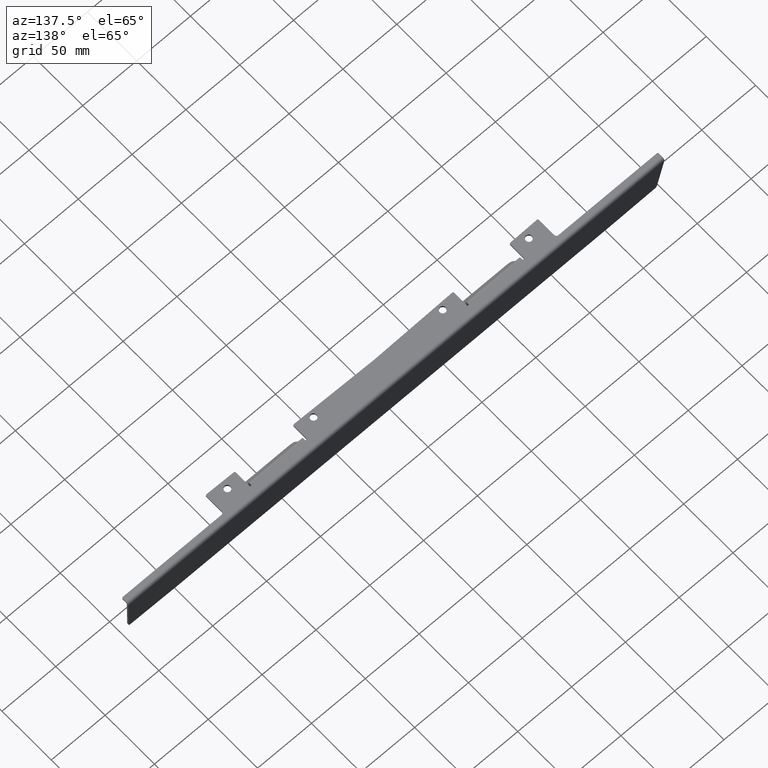
[diagram: clean part render]
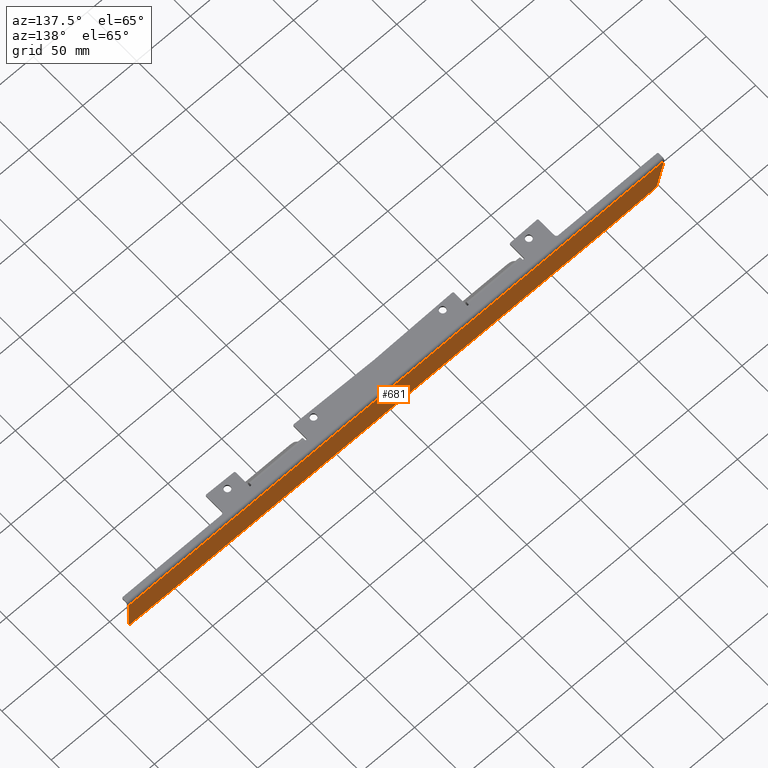
[diagram: same view with one face highlighted and labeled with its STEP entity id]
A machine part, auxiliary view. The second image highlights one B-rep face of the part: STEP entity #681.
In plain terms, the highlighted planar face has unit normal (0, -0.9962, 0.0872).
Its self-contained STEP definition (entity closure, byte-faithful):
#20 = DIRECTION ( 'NONE',  ( 0.0000000000000000000, -0.08715574274765482100, -0.9961946980917458800 ) ) ;
#29 = DIRECTION ( 'NONE',  ( -0.9993908270190956500, -0.003041691556625808000, -0.03476669358110191100 ) ) ;
#54 = VERTEX_POINT ( 'NONE', #2273 ) ;
#82 = ORIENTED_EDGE ( 'NONE', *, *, #2459, .T. ) ;
#123 = VERTEX_POINT ( 'NONE', #2293 ) ;
#163 = DIRECTION ( 'NONE',  ( -0.0000000000000000000, 0.9961946980917457700, -0.08715574274765480700 ) ) ;
#175 = DIRECTION ( 'NONE',  ( -0.0000000000000000000, 0.9961946980917457700, -0.08715574274765480700 ) ) ;
#180 = VECTOR ( 'NONE', #29, 1000.000000000000100 ) ;
#203 = VERTEX_POINT ( 'NONE', #288 ) ;
#216 = CARTESIAN_POINT ( 'NONE',  ( 247.2166936555520400, 16.09134908696670900, -23.02360959325102400 ) ) ;
#222 = EDGE_LOOP ( 'NONE', ( #2385, #1758, #555, #1685, #1750, #428, #1118, #326, #82, #1075 ) ) ;
#226 = DIRECTION ( 'NONE',  ( -0.08715574274765834600, -0.08682408883346180700, -0.9924038765061041800 ) ) ;
#260 = CARTESIAN_POINT ( 'NONE',  ( 1.866100699968819200, 13.31897073957210300, -54.71203910701565600 ) ) ;
#288 = CARTESIAN_POINT ( 'NONE',  ( 198.9650898701433200, 13.91895675186533800, -47.85416760557850300 ) ) ;
#295 = DIRECTION ( 'NONE',  ( -0.0000000000000000000, 0.9961946980917457700, -0.08715574274765480700 ) ) ;
#313 = CARTESIAN_POINT ( 'NONE',  ( 245.3312998125535100, 14.21312973675681200, -44.49175500220942300 ) ) ;
#326 = ORIENTED_EDGE ( 'NONE', *, *, #2322, .T. ) ;
#415 = CARTESIAN_POINT ( 'NONE',  ( -243.3389104163699700, 14.22832198374460200, -44.31810682454248300 ) ) ;
#428 = ORIENTED_EDGE ( 'NONE', *, *, #2193, .T. ) ;
#482 = CARTESIAN_POINT ( 'NONE',  ( -1.866100699968819000, 13.31897073957210000, -54.71203910701565600 ) ) ;
#492 = CARTESIAN_POINT ( 'NONE',  ( 198.9650898701433200, 14.09326823736064700, -45.86177820939499800 ) ) ;
#521 = CIRCLE ( 'NONE', #1365, 2.000000000000000900 ) ;
#555 = ORIENTED_EDGE ( 'NONE', *, *, #686, .F. ) ;
#564 = CARTESIAN_POINT ( 'NONE',  ( -198.9650898701433200, 14.09326823736064700, -45.86177820939499800 ) ) ;
#666 = VERTEX_POINT ( 'NONE', #2185 ) ;
#669 = AXIS2_PLACEMENT_3D ( 'NONE', #1109, #1542, #20 ) ;
#670 = CIRCLE ( 'NONE', #1986, 2.000000000000000900 ) ;
#681 = ADVANCED_FACE ( 'NONE', ( #1766 ), #896, .F. ) ;
#686 = EDGE_CURVE ( 'NONE', #1925, #1299, #1339, .T. ) ;
#716 = EDGE_CURVE ( 'NONE', #666, #1607, #2791, .T. ) ;
#721 = DIRECTION ( 'NONE',  ( -1.387778780781445000E-014, -0.08715574274765434900, -0.9961946980917459900 ) ) ;
#726 = CIRCLE ( 'NONE', #911, 2.000000000000000900 ) ;
#795 = EDGE_CURVE ( 'NONE', #54, #2088, #2316, .T. ) ;
#879 = CIRCLE ( 'NONE', #1525, 2.000000000000000900 ) ;
#896 = PLANE ( 'NONE',  #669 ) ;
#911 = AXIS2_PLACEMENT_3D ( 'NONE', #492, #295, #721 ) ;
#919 = CARTESIAN_POINT ( 'NONE',  ( -245.3312998125535100, 14.21312973675680900, -44.49175500220942300 ) ) ;
#932 = DIRECTION ( 'NONE',  ( 0.9993908270190956500, -0.003041691556625807500, -0.03476669358110190400 ) ) ;
#1065 = DIRECTION ( 'NONE',  ( -0.0000000000000000000, 0.9961946980917457700, -0.08715574274765480700 ) ) ;
#1075 = ORIENTED_EDGE ( 'NONE', *, *, #2059, .T. ) ;
#1078 = LINE ( 'NONE', #1770, #2471 ) ;
#1092 = DIRECTION ( 'NONE',  ( 0.0000000000000000000, -0.08715574274765434900, -0.9961946980917459900 ) ) ;
#1104 = EDGE_CURVE ( 'NONE', #123, #2442, #2531, .T. ) ;
#1109 = CARTESIAN_POINT ( 'NONE',  ( 0.0000000000000000000, 17.97641085085415800, -1.477255038081061600 ) ) ;
#1118 = ORIENTED_EDGE ( 'NONE', *, *, #716, .T. ) ;
#1129 = VECTOR ( 'NONE', #1558, 1000.000000000000200 ) ;
#1210 = CARTESIAN_POINT ( 'NONE',  ( 199.0348888635483600, 13.91906293771256400, -47.85295389579089700 ) ) ;
#1299 = VERTEX_POINT ( 'NONE', #919 ) ;
#1339 = LINE ( 'NONE', #2395, #1129 ) ;
#1363 = VECTOR ( 'NONE', #226, 1000.000000000000100 ) ;
#1365 = AXIS2_PLACEMENT_3D ( 'NONE', #564, #175, #2565 ) ;
#1525 = AXIS2_PLACEMENT_3D ( 'NONE', #415, #163, #2345 ) ;
#1542 = DIRECTION ( 'NONE',  ( 0.0000000000000000000, -0.9961946980917458800, 0.08715574274765482100 ) ) ;
#1558 = DIRECTION ( 'NONE',  ( 0.08715574274765833200, -0.08682408883346180700, -0.9924038765061041800 ) ) ;
#1607 = VERTEX_POINT ( 'NONE', #1210 ) ;
#1638 = EDGE_CURVE ( 'NONE', #54, #1299, #879, .T. ) ;
#1685 = ORIENTED_EDGE ( 'NONE', *, *, #2704, .F. ) ;
#1750 = ORIENTED_EDGE ( 'NONE', *, *, #1104, .T. ) ;
#1758 = ORIENTED_EDGE ( 'NONE', *, *, #1638, .T. ) ;
#1766 = FACE_OUTER_BOUND ( 'NONE', #222, .T. ) ;
#1770 = CARTESIAN_POINT ( 'NONE',  ( -249.0000000000000000, 17.86786941237900100, -2.717889356869138700 ) ) ;
#1883 = VECTOR ( 'NONE', #2073, 1000.000000000000000 ) ;
#1925 = VERTEX_POINT ( 'NONE', #1987 ) ;
#1972 = VERTEX_POINT ( 'NONE', #2362 ) ;
#1986 = AXIS2_PLACEMENT_3D ( 'NONE', #2590, #1065, #1092 ) ;
#1987 = CARTESIAN_POINT ( 'NONE',  ( -249.0000000000001100, 17.86786941237899700, -2.717889356869141800 ) ) ;
#1996 = DIRECTION ( 'NONE',  ( -1.000000000000000000, 1.209765342808851600E-018, 1.382768114237371700E-017 ) ) ;
#2059 = EDGE_CURVE ( 'NONE', #1972, #2088, #521, .T. ) ;
#2073 = DIRECTION ( 'NONE',  ( -1.000000000000000000, 0.0000000000000000000, 0.0000000000000000000 ) ) ;
#2088 = VERTEX_POINT ( 'NONE', #2579 ) ;
#2185 = CARTESIAN_POINT ( 'NONE',  ( 243.4087094097750100, 14.05411668409651700, -46.30928251093838100 ) ) ;
#2193 = EDGE_CURVE ( 'NONE', #2442, #666, #670, .T. ) ;
#2266 = CARTESIAN_POINT ( 'NONE',  ( 0.0000000000000000000, 13.91895675186533800, -47.85416760557850300 ) ) ;
#2273 = CARTESIAN_POINT ( 'NONE',  ( -243.4087094097750100, 14.05411668409651300, -46.30928251093838100 ) ) ;
#2291 = LINE ( 'NONE', #2266, #1883 ) ;
#2293 = CARTESIAN_POINT ( 'NONE',  ( 248.9999999999999400, 17.86786941237891600, -2.717889356869139600 ) ) ;
#2316 = LINE ( 'NONE', #482, #2724 ) ;
#2322 = EDGE_CURVE ( 'NONE', #1607, #203, #726, .T. ) ;
#2345 = DIRECTION ( 'NONE',  ( 0.0000000000000000000, -0.08715574274765434900, -0.9961946980917459900 ) ) ;
#2362 = CARTESIAN_POINT ( 'NONE',  ( -198.9650898701433200, 13.91895675186533800, -47.85416760557850300 ) ) ;
#2385 = ORIENTED_EDGE ( 'NONE', *, *, #795, .F. ) ;
#2395 = CARTESIAN_POINT ( 'NONE',  ( -247.2166936555520400, 16.09134908696670500, -23.02360959325102400 ) ) ;
#2442 = VERTEX_POINT ( 'NONE', #313 ) ;
#2459 = EDGE_CURVE ( 'NONE', #203, #1972, #2291, .T. ) ;
#2471 = VECTOR ( 'NONE', #1996, 1000.000000000000000 ) ;
#2531 = LINE ( 'NONE', #216, #1363 ) ;
#2565 = DIRECTION ( 'NONE',  ( 0.0000000000000000000, -0.08715574274765434900, -0.9961946980917459900 ) ) ;
#2579 = CARTESIAN_POINT ( 'NONE',  ( -199.0348888635483900, 13.91906293771256000, -47.85295389579089700 ) ) ;
#2590 = CARTESIAN_POINT ( 'NONE',  ( 243.3389104163700000, 14.22832198374460200, -44.31810682454248300 ) ) ;
#2704 = EDGE_CURVE ( 'NONE', #123, #1925, #1078, .T. ) ;
#2724 = VECTOR ( 'NONE', #932, 1000.000000000000200 ) ;
#2791 = LINE ( 'NONE', #260, #180 ) ;